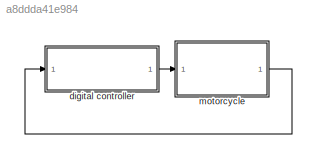
MODEL slx_a8ddda41e984
KIND model
CONFIG AbsTol = auto
CONFIG EnableMultiTasking = on
CONFIG FixedStep = auto
CONFIG MaxStep = auto
CONFIG MinStep = auto
CONFIG PostLoadFcn = run("modelParameters.m")
CONFIG RelTol = 1e-3
CONFIG SampleTimeConstraint = Unconstrained
CONFIG SolverName = FixedStepAuto
CONFIG StartTime = 0.0
CONFIG StopTime = inf
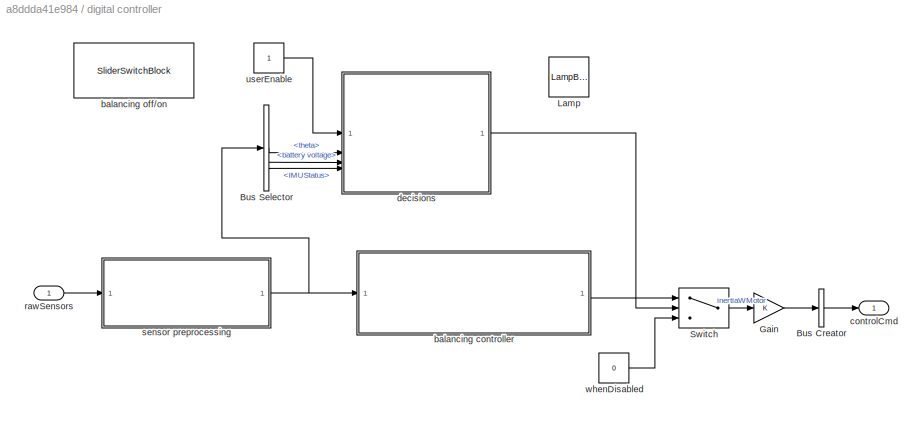
BLOCK [SubSystem] digital controller
BLOCK [BusCreator] digital controller/Bus Creator
  DisplayOption = bar
  InheritFromInputs = on
  Inputs = 1
BLOCK [BusSelector] digital controller/Bus Selector
  OutputSignals = theta,battery voltage,IMUStatus
BLOCK [Gain] digital controller/Gain
BLOCK [LampBlock] digital controller/Lamp
BLOCK [Switch] digital controller/Switch
  Criteria = u2 > Threshold
  InputSameDT = off
  SaturateOnIntegerOverflow = off
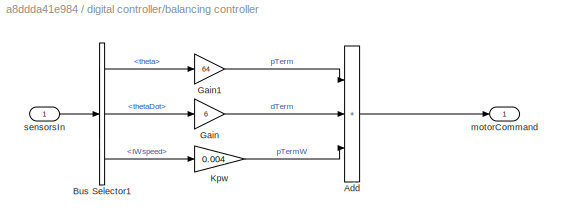
BLOCK [SubSystem] digital controller/balancing controller
BLOCK [Sum] digital controller/balancing controller/Add
  IconShape = rectangular
  Inputs = +++
BLOCK [BusSelector] digital controller/balancing controller/Bus Selector1
  OutputSignals = theta,thetaDot,IWspeed
BLOCK [Gain] digital controller/balancing controller/Gain
  Gain = 6
BLOCK [Gain] digital controller/balancing controller/Gain1
  Gain = 64
BLOCK [Gain] digital controller/balancing controller/Kpw
  Gain = 0.004
BLOCK [Outport] digital controller/balancing controller/motorCommand
BLOCK [Inport] digital controller/balancing controller/sensorsIn
BLOCK [SliderSwitchBlock] digital controller/balancing off//on
  LabelPosition = Hide
BLOCK [Outport] digital controller/controlCmd
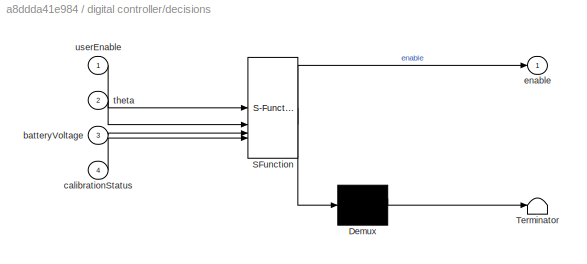
BLOCK [SubSystem] digital controller/decisions
  ErrorFcn = Stateflow.Translate.translate
  PermitHierarchicalResolution = ExplicitOnly
  SFBlockType = Chart
  TreatAsAtomicUnit = on
BLOCK [Demux] digital controller/decisions/ Demux 
  Outputs = 1
BLOCK [S-Function] digital controller/decisions/ SFunction 
  EnableBusSupport = off
  FunctionName = sf_sfun
  PortCounts = [4 2]
  SFcnIsStateOwnerBlock = off
  SFunctionDeploymentMode = off
  Tag = Stateflow S-Function 3
BLOCK [Terminator] digital controller/decisions/ Terminator 
BLOCK [Inport] digital controller/decisions/batteryVoltage
  Port = 3
BLOCK [Inport] digital controller/decisions/calibrationStatus
  Port = 4
BLOCK [Outport] digital controller/decisions/enable
BLOCK [Inport] digital controller/decisions/theta
  Port = 2
BLOCK [Inport] digital controller/decisions/userEnable
BLOCK [Inport] digital controller/rawSensors
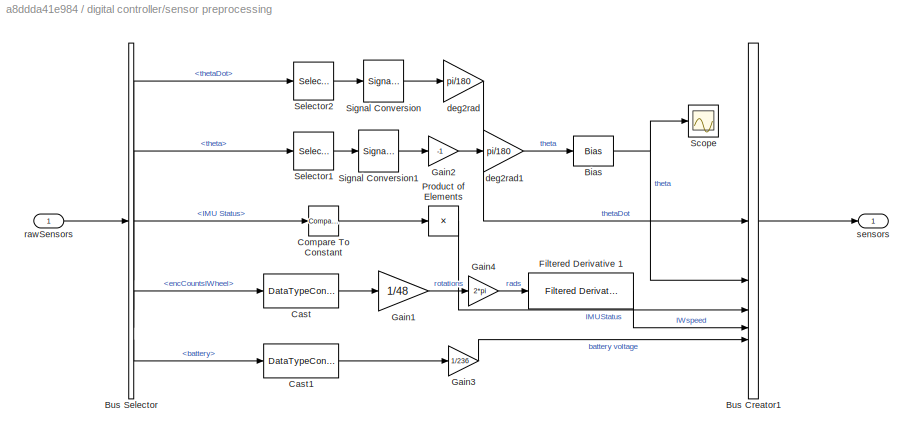
BLOCK [SubSystem] digital controller/sensor preprocessing
BLOCK [Bias] digital controller/sensor preprocessing/Bias
  Bias = -0.005
  SaturateOnIntegerOverflow = off
BLOCK [BusCreator] digital controller/sensor preprocessing/Bus Creator1
  DisplayOption = bar
  InheritFromInputs = on
  Inputs = 5
BLOCK [BusSelector] digital controller/sensor preprocessing/Bus Selector
  OutputSignals = thetaDot,theta,IMU Status,encCountsIWheel,battery
BLOCK [DataTypeConversion] digital controller/sensor preprocessing/Cast
  OutDataTypeStr = double
  RndMeth = Floor
  SaturateOnIntegerOverflow = off
BLOCK [DataTypeConversion] digital controller/sensor preprocessing/Cast1
  OutDataTypeStr = double
  RndMeth = Floor
  SaturateOnIntegerOverflow = off
BLOCK [Reference] digital controller/sensor preprocessing/Compare To Constant  REF=simulink/Logic and Bit
Operations/Compare
To Constant
  SourceBlock = simulink/Logic and Bit\nOperations/Compare\nTo Constant
  SourceType = Compare To Constant
BLOCK [Reference] digital controller/sensor preprocessing/Filtered Derivative 1  REF=eeGeneralControl/Filtered Derivative
(Discrete or Continuous)
  SourceBlock = eeGeneralControl/Filtered Derivative\n(Discrete or Continuous)
  SourceType = Filtered Derivative (Discrete or Continuous)
BLOCK [Gain] digital controller/sensor preprocessing/Gain1
  Gain = 1/48
BLOCK [Gain] digital controller/sensor preprocessing/Gain2
  Gain = -1
BLOCK [Gain] digital controller/sensor preprocessing/Gain3
  Gain = 1/236
BLOCK [Gain] digital controller/sensor preprocessing/Gain4
  Gain = 2*pi
BLOCK [Product] digital controller/sensor preprocessing/Product of Elements
  Inputs = *
BLOCK [Scope] digital controller/sensor preprocessing/Scope
  Floating = off
  NumInputPorts = 1
  ScopeSpecificationString = Simulink.scopes.TimeScopeBlockCfg('CurrentConfiguration', extmgr.ConfigurationSet(extmgr.Configuration('Core','General UI',true),extmgr.Configuration('Core','Source UI',true),extmgr.Configuration('Sources','WiredSimulink',true),extmgr.Configuration('Visuals','Time Domain',true,'SerializedDisplays',{struct('MinYLimReal','-0.04545','MaxYLimReal','0.0309','YLabelReal','','MinYLimMag','0.00000','MaxYL...<+1453ch>
BLOCK [Selector] digital controller/sensor preprocessing/Selector1
  IndexOptions = Index vector (dialog)
  Indices = [2]
  InputPortWidth = 3
  OutputSizes = 1
BLOCK [Selector] digital controller/sensor preprocessing/Selector2
  IndexOptions = Index vector (dialog)
  Indices = [2]
  InputPortWidth = 3
  OutputSizes = 1
BLOCK [SignalConversion] digital controller/sensor preprocessing/Signal Conversion
  OverrideOpt = off
BLOCK [SignalConversion] digital controller/sensor preprocessing/Signal Conversion1
  OverrideOpt = off
BLOCK [Gain] digital controller/sensor preprocessing/deg2rad
  Gain = pi/180
BLOCK [Gain] digital controller/sensor preprocessing/deg2rad1
  Gain = pi/180
BLOCK [Inport] digital controller/sensor preprocessing/rawSensors
BLOCK [Outport] digital controller/sensor preprocessing/sensors
BLOCK [Constant] digital controller/userEnable
  SampleTime = Ts
BLOCK [Constant] digital controller/whenDisabled
  SampleTime = Ts
  Value = 0
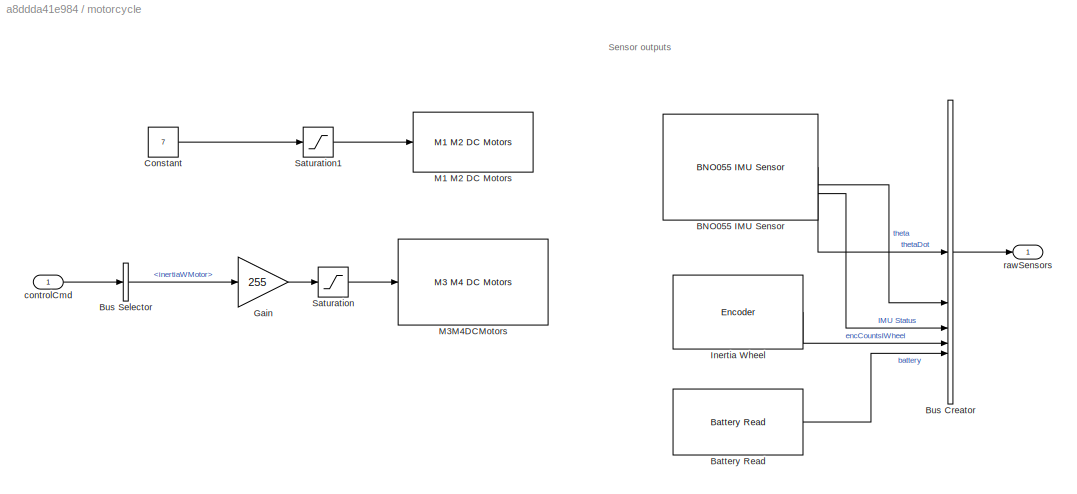
BLOCK [SubSystem] motorcycle
BLOCK [Reference] motorcycle/BNO055 IMU  Sensor  REF=arduinosensorlib/BNO055 IMU Sensor
  SourceBlock = arduinosensorlib/BNO055 IMU Sensor
  SourceType = BNO055
BLOCK [Reference] motorcycle/Battery Read  REF=arduinomotorcarrierlib/Battery Read
  SourceBlock = arduinomotorcarrierlib/Battery Read
  SourceType = motorcarrier.blocks.mkrmotorcarrier_Battery
BLOCK [BusCreator] motorcycle/Bus Creator
  DisplayOption = bar
  InheritFromInputs = on
  Inputs = 5
BLOCK [BusSelector] motorcycle/Bus Selector
  OutputSignals = inertiaWMotor
BLOCK [Constant] motorcycle/Constant
  Value = 7
BLOCK [Gain] motorcycle/Gain
  Gain = 255
BLOCK [Reference] motorcycle/Inertia Wheel  REF=arduinomotorcarrierlib/Encoder
  SourceBlock = arduinomotorcarrierlib/Encoder
  SourceType = motorcarrier.blocks.mkrmotorcarrier_Encoder
BLOCK [Reference] motorcycle/M1 M2 DC Motors  REF=arduinomotorcarrierlib/M1 M2 DC Motors
  SourceBlock = arduinomotorcarrierlib/M1 M2 DC Motors
  SourceType = DC Motor
BLOCK [Reference] motorcycle/M3M4DCMotors  REF=mkrmotorcarrierlib/M3 M4 DC Motors
  SourceBlock = mkrmotorcarrierlib/M3 M4 DC Motors
  SourceType = DC Motor
BLOCK [Saturate] motorcycle/Saturation
  LowerLimit = -255
  UpperLimit = 255
BLOCK [Saturate] motorcycle/Saturation1
  LowerLimit = -255
  UpperLimit = 255
BLOCK [Inport] motorcycle/controlCmd
BLOCK [Outport] motorcycle/rawSensors
ANNOTATION motorcycle: Sensor outputs
LINE digital controller/Bus Creator:1 -> digital controller/controlCmd:1
LINE digital controller/Bus Selector:1 -> digital controller/decisions:2
LINE digital controller/Bus Selector:2 -> digital controller/decisions:3
LINE digital controller/Bus Selector:3 -> digital controller/decisions:4
LINE digital controller/Gain:1 -> digital controller/Bus Creator:1
LINE digital controller/Switch:1 -> digital controller/Gain:1
LINE digital controller/balancing controller/Add:1 -> digital controller/balancing controller/motorCommand:1
LINE digital controller/balancing controller/Bus Selector1:1 -> digital controller/balancing controller/Gain1:1
LINE digital controller/balancing controller/Bus Selector1:2 -> digital controller/balancing controller/Gain:1
LINE digital controller/balancing controller/Bus Selector1:3 -> digital controller/balancing controller/Kpw:1
LINE digital controller/balancing controller/Gain1:1 -> digital controller/balancing controller/Add:1
LINE digital controller/balancing controller/Gain:1 -> digital controller/balancing controller/Add:2
LINE digital controller/balancing controller/Kpw:1 -> digital controller/balancing controller/Add:3
LINE digital controller/balancing controller/sensorsIn:1 -> digital controller/balancing controller/Bus Selector1:1
LINE digital controller/balancing controller:1 -> digital controller/Switch:1
LINE digital controller/decisions:1 -> digital controller/Switch:2
LINE digital controller/rawSensors:1 -> digital controller/sensor preprocessing:1
NET digital controller/sensor preprocessing/Bias:1 -> digital controller/sensor preprocessing/Bus Creator1:2, digital controller/sensor preprocessing/Scope:1
LINE digital controller/sensor preprocessing/Bus Creator1:1 -> digital controller/sensor preprocessing/sensors:1
LINE digital controller/sensor preprocessing/Bus Selector:1 -> digital controller/sensor preprocessing/Selector2:1
LINE digital controller/sensor preprocessing/Bus Selector:2 -> digital controller/sensor preprocessing/Selector1:1
LINE digital controller/sensor preprocessing/Bus Selector:3 -> digital controller/sensor preprocessing/Compare To Constant:1
LINE digital controller/sensor preprocessing/Bus Selector:4 -> digital controller/sensor preprocessing/Cast:1
LINE digital controller/sensor preprocessing/Bus Selector:5 -> digital controller/sensor preprocessing/Cast1:1
LINE digital controller/sensor preprocessing/Cast1:1 -> digital controller/sensor preprocessing/Gain3:1
LINE digital controller/sensor preprocessing/Cast:1 -> digital controller/sensor preprocessing/Gain1:1
LINE digital controller/sensor preprocessing/Compare To Constant:1 -> digital controller/sensor preprocessing/Product of Elements:1
LINE digital controller/sensor preprocessing/Filtered Derivative 1:1 -> digital controller/sensor preprocessing/Bus Creator1:4
LINE digital controller/sensor preprocessing/Gain1:1 -> digital controller/sensor preprocessing/Gain4:1
LINE digital controller/sensor preprocessing/Gain2:1 -> digital controller/sensor preprocessing/deg2rad1:1
LINE digital controller/sensor preprocessing/Gain3:1 -> digital controller/sensor preprocessing/Bus Creator1:5
LINE digital controller/sensor preprocessing/Gain4:1 -> digital controller/sensor preprocessing/Filtered Derivative 1:1
LINE digital controller/sensor preprocessing/Product of Elements:1 -> digital controller/sensor preprocessing/Bus Creator1:3
LINE digital controller/sensor preprocessing/Selector1:1 -> digital controller/sensor preprocessing/Signal Conversion1:1
LINE digital controller/sensor preprocessing/Selector2:1 -> digital controller/sensor preprocessing/Signal Conversion:1
LINE digital controller/sensor preprocessing/Signal Conversion1:1 -> digital controller/sensor preprocessing/Gain2:1
LINE digital controller/sensor preprocessing/Signal Conversion:1 -> digital controller/sensor preprocessing/deg2rad:1
LINE digital controller/sensor preprocessing/deg2rad1:1 -> digital controller/sensor preprocessing/Bias:1
LINE digital controller/sensor preprocessing/deg2rad:1 -> digital controller/sensor preprocessing/Bus Creator1:1
LINE digital controller/sensor preprocessing/rawSensors:1 -> digital controller/sensor preprocessing/Bus Selector:1
NET digital controller/sensor preprocessing:1 -> digital controller/Bus Selector:1, digital controller/balancing controller:1
LINE digital controller/userEnable:1 -> digital controller/decisions:1
LINE digital controller/whenDisabled:1 -> digital controller/Switch:3
LINE digital controller:1 -> motorcycle:1
LINE motorcycle/BNO055 IMU  Sensor:1 -> motorcycle/Bus Creator:1
LINE motorcycle/BNO055 IMU  Sensor:2 -> motorcycle/Bus Creator:2
LINE motorcycle/BNO055 IMU  Sensor:3 -> motorcycle/Bus Creator:3
LINE motorcycle/Battery Read:1 -> motorcycle/Bus Creator:5
LINE motorcycle/Bus Creator:1 -> motorcycle/rawSensors:1
LINE motorcycle/Bus Selector:1 -> motorcycle/Gain:1
LINE motorcycle/Constant:1 -> motorcycle/Saturation1:1
LINE motorcycle/Gain:1 -> motorcycle/Saturation:1
LINE motorcycle/Inertia Wheel:1 -> motorcycle/Bus Creator:4
LINE motorcycle/Saturation1:1 -> motorcycle/M1 M2 DC Motors:1
LINE motorcycle/Saturation:1 -> motorcycle/M3M4DCMotors:1
LINE motorcycle/controlCmd:1 -> motorcycle/Bus Selector:1
LINE motorcycle:1 -> digital controller:1
note: NET lines group one-source signal fan-out (src -> all destinations, sorted); 1:1 wires keep LINE
CHART digital controller/decisions states=12 transitions=11
  STATE_LABEL 'checkFallen'
  STATE_LABEL 'fallen\nentry: upright = false'
  STATE_LABEL 'standing\nentry: upright = true\n'
  STATE_LABEL '[abs(theta) <pi*12/180]'
  STATE_LABEL '[abs(theta) > pi*12/180]'
  STATE_LABEL 'fallen\nentry: upright = false'
  STATE_LABEL 'standing\nentry: upright = true\n'
  STATE_LABEL 'checkIMUCalib'
  STATE_LABEL 'imuNotCalibrated\nentry:\nIMUCalibrated = false;'
  STATE_LABEL 'imuCalibrated\nentry:\nIMUCalibrated = true;'
  STATE_LABEL '[calibrationStatus == true]'
  STATE_LABEL 'imuNotCalibrated\nentry:\nIMUCalibrated = false;'
  STATE_LABEL 'imuCalibrated\nentry:\nIMUCalibrated = true;'
  STATE_LABEL 'checkBattery'
  STATE_LABEL 'batteryNotCharged\nentry:\nbatteryOK = false;'
  STATE_LABEL 'batteryCharged\nentry:\nbatteryOK = true;'
  STATE_LABEL '[batteryVoltage < 3.0]'
  STATE_LABEL '[batteryVoltage >= 3.0]'
  STATE_LABEL 'batteryNotCharged\nentry:\nbatteryOK = false;'
  STATE_LABEL 'batteryCharged\nentry:\nbatteryOK = true;'
  STATE_LABEL 'calculateEnable'
  STATE_LABEL 'disableControl\nentry: enable = false'
  STATE_LABEL 'enableControl\nentry: enable = true'
  STATE_LABEL '[userEnable&& batteryOK && IMUCalibrated && upright]'
  STATE_LABEL '[not(userEnable) || not(batteryOK) || not(IMUCalibrated) || not(upright)]'
  STATE_LABEL 'disableControl\nentry: enable = false'
  STATE_LABEL 'enableControl\nentry: enable = true'
CHART  states=0 transitions=0
